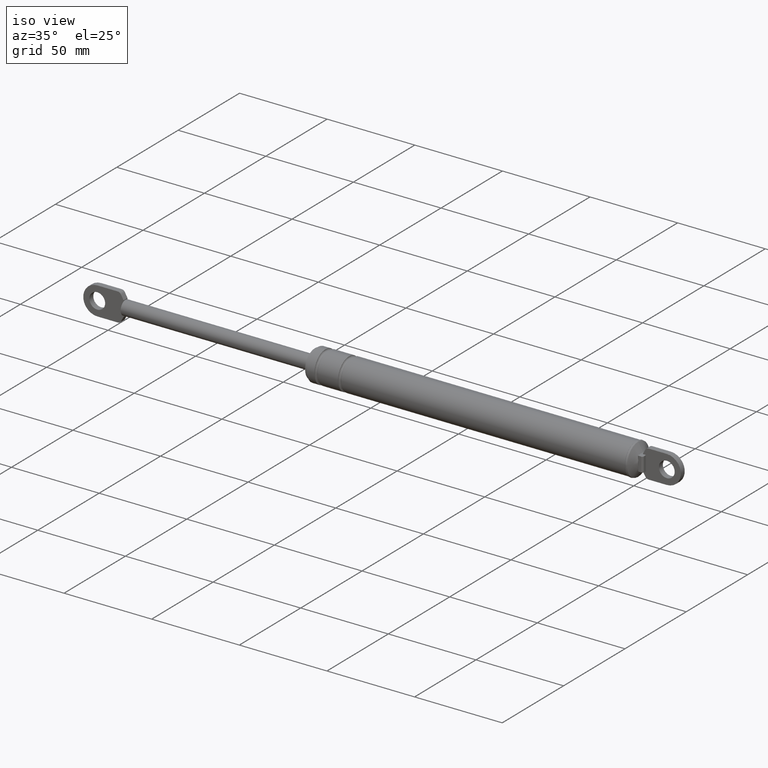
[diagram: clean part render]
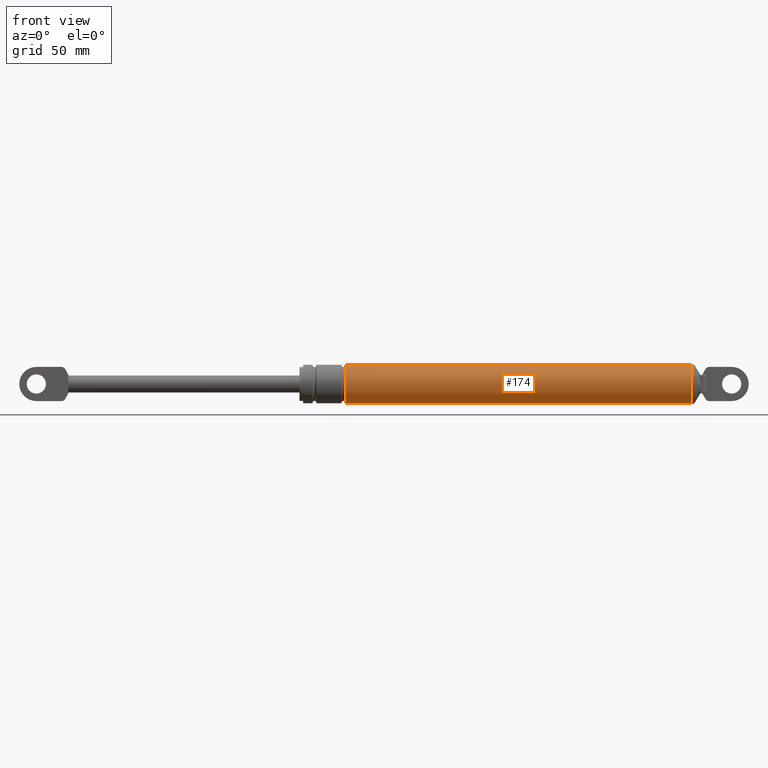
[diagram: tour spotlight — one face highlighted and labeled with its STEP entity id]
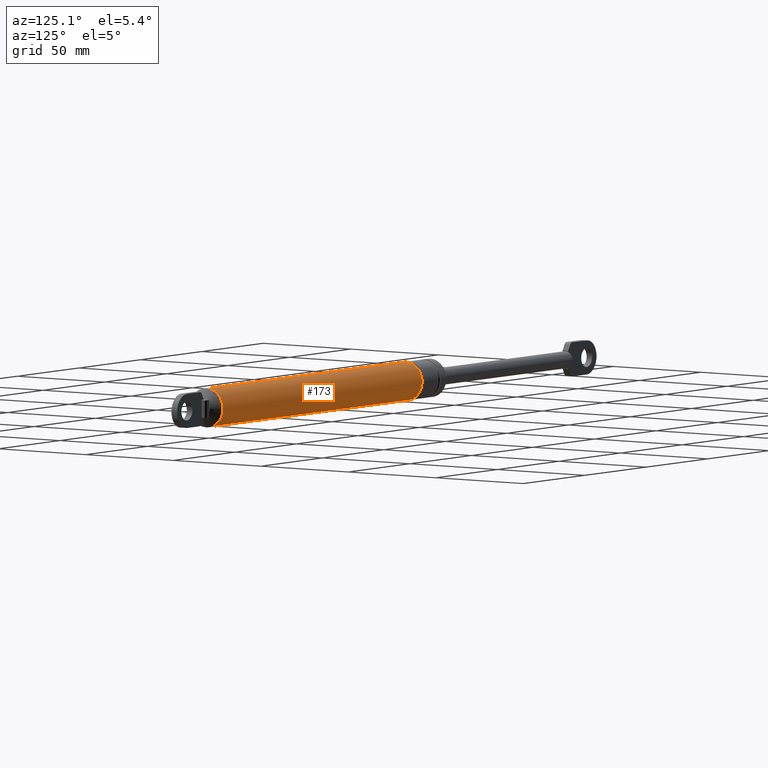
[diagram: tour spotlight — one face highlighted and labeled with its STEP entity id]
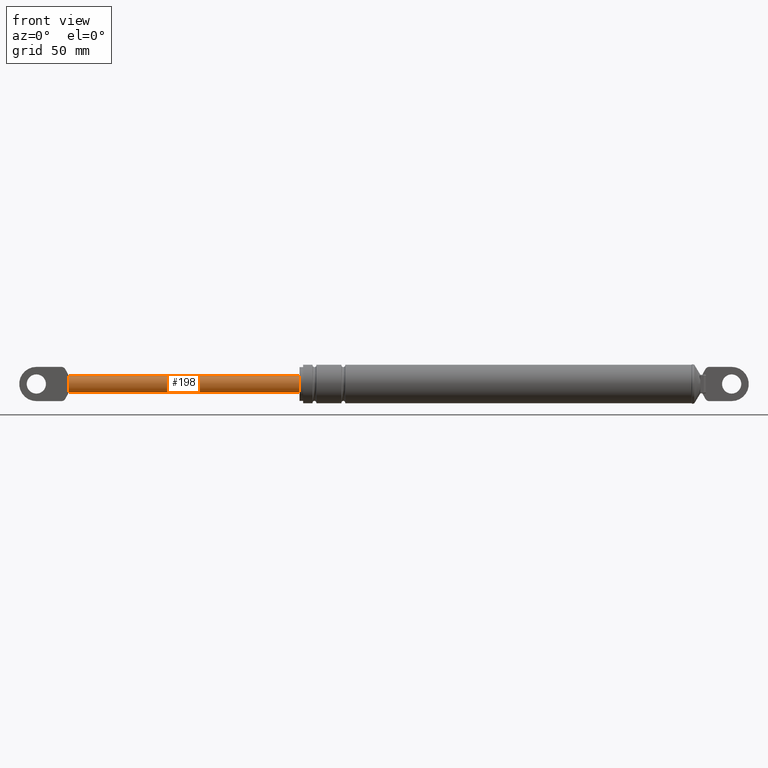
[diagram: tour spotlight — one face highlighted and labeled with its STEP entity id]
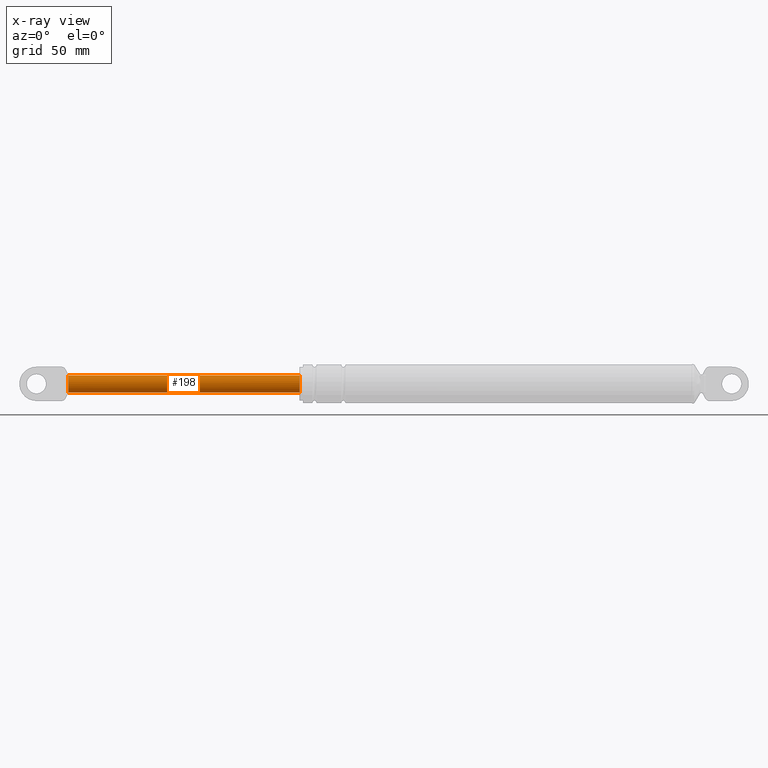
[diagram: x-ray of the same camera — body ghosted, this tour face saturated]
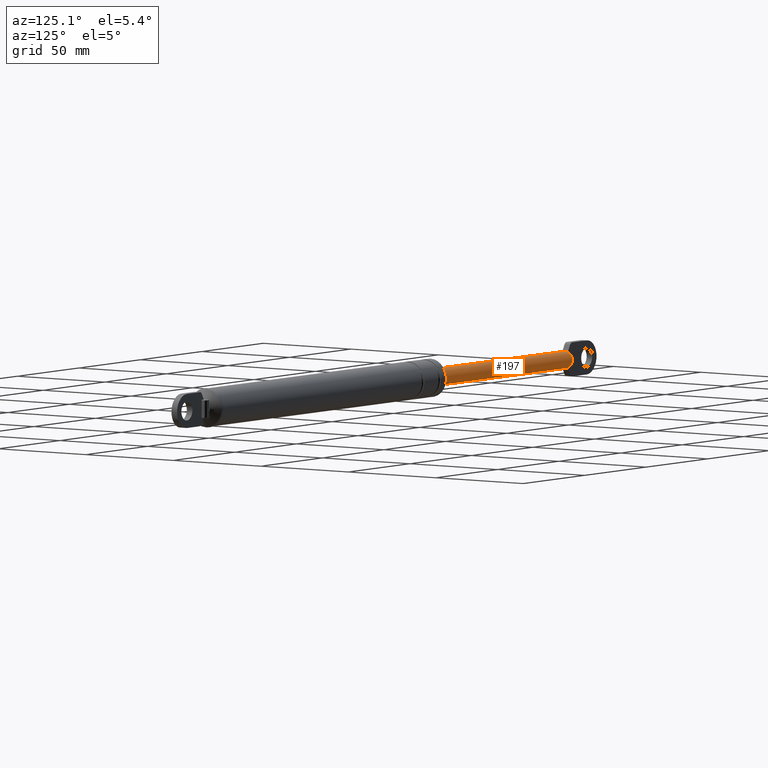
[diagram: tour spotlight — one face highlighted and labeled with its STEP entity id]
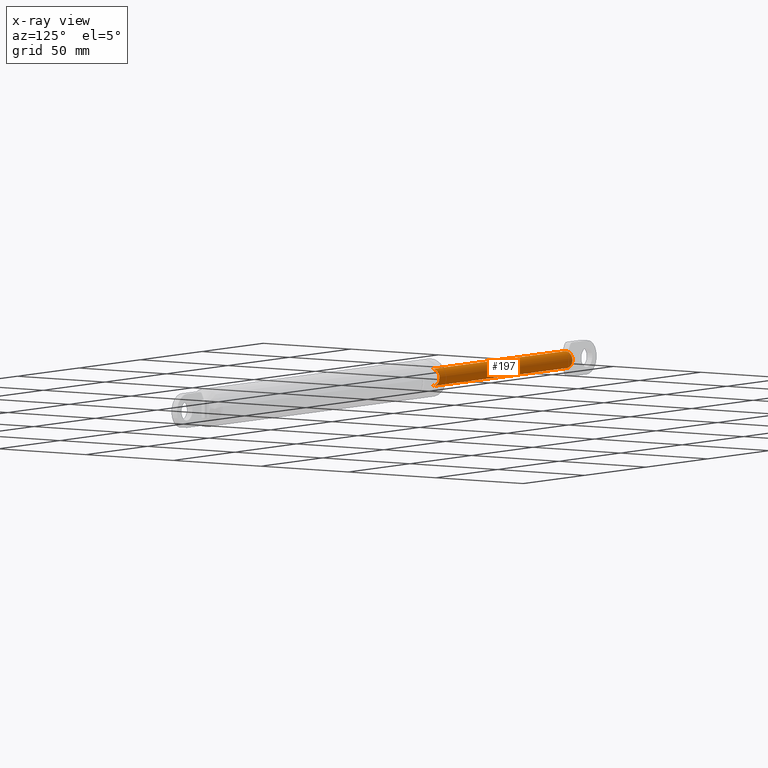
[diagram: x-ray of the same camera — body ghosted, this tour face saturated]
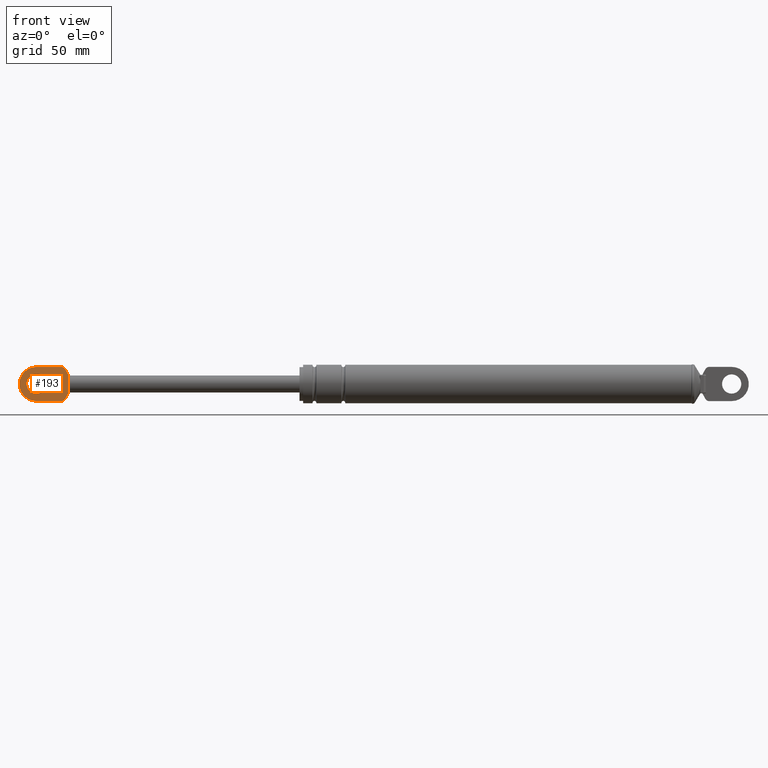
[diagram: tour spotlight — one face highlighted and labeled with its STEP entity id]
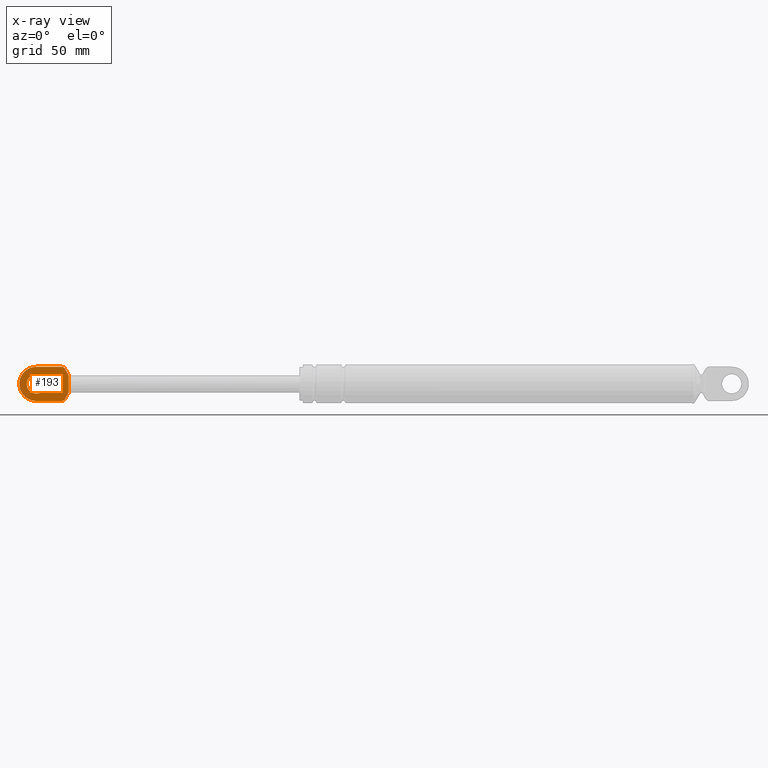
[diagram: x-ray of the same camera — body ghosted, this tour face saturated]
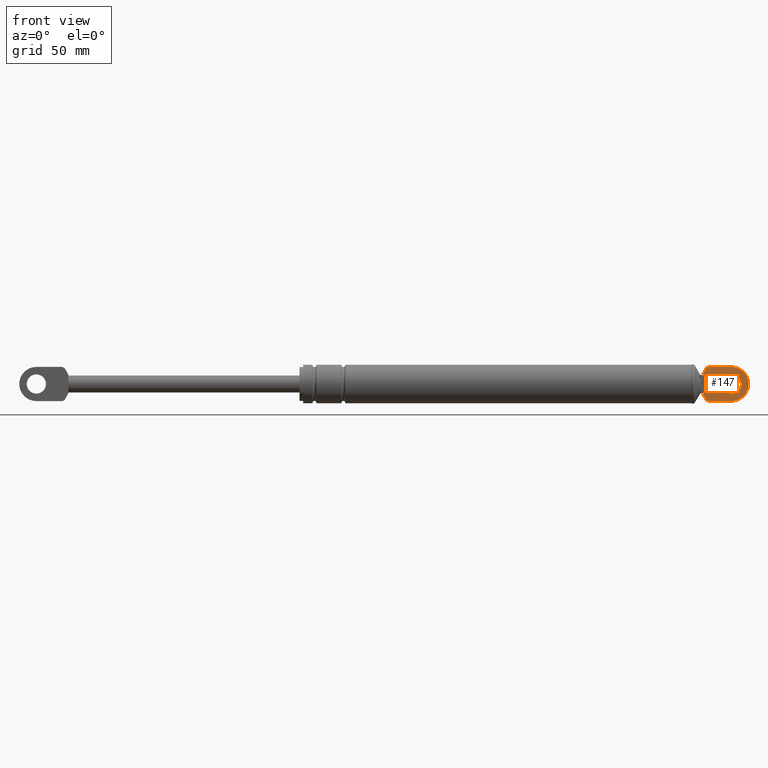
[diagram: tour spotlight — one face highlighted and labeled with its STEP entity id]
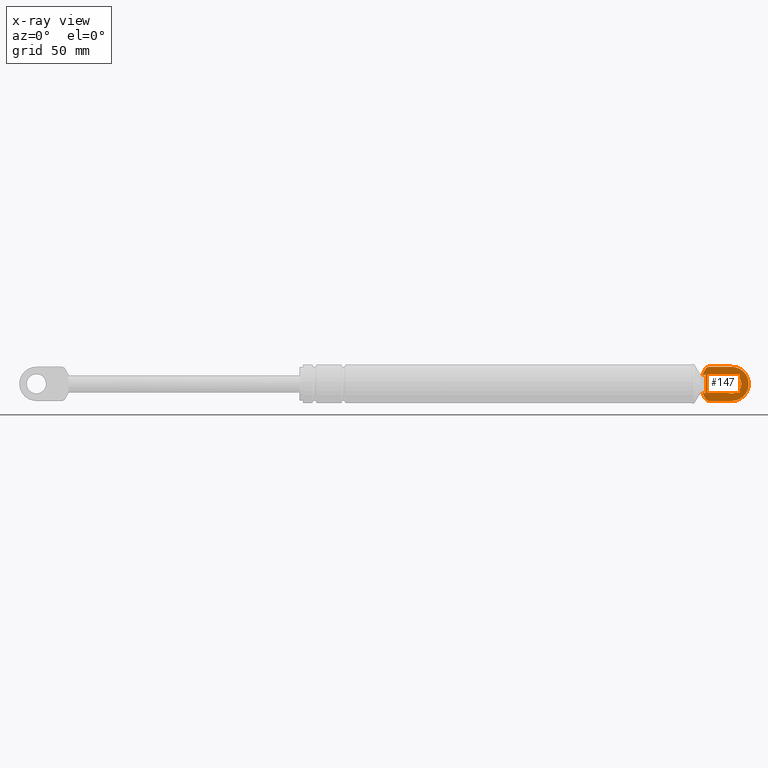
[diagram: x-ray of the same camera — body ghosted, this tour face saturated]
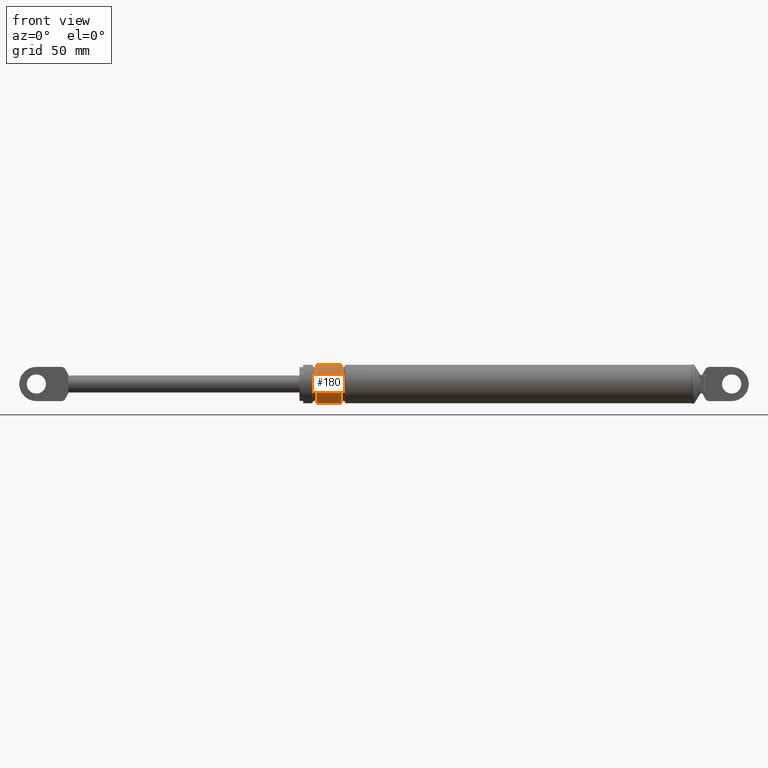
[diagram: tour spotlight — one face highlighted and labeled with its STEP entity id]
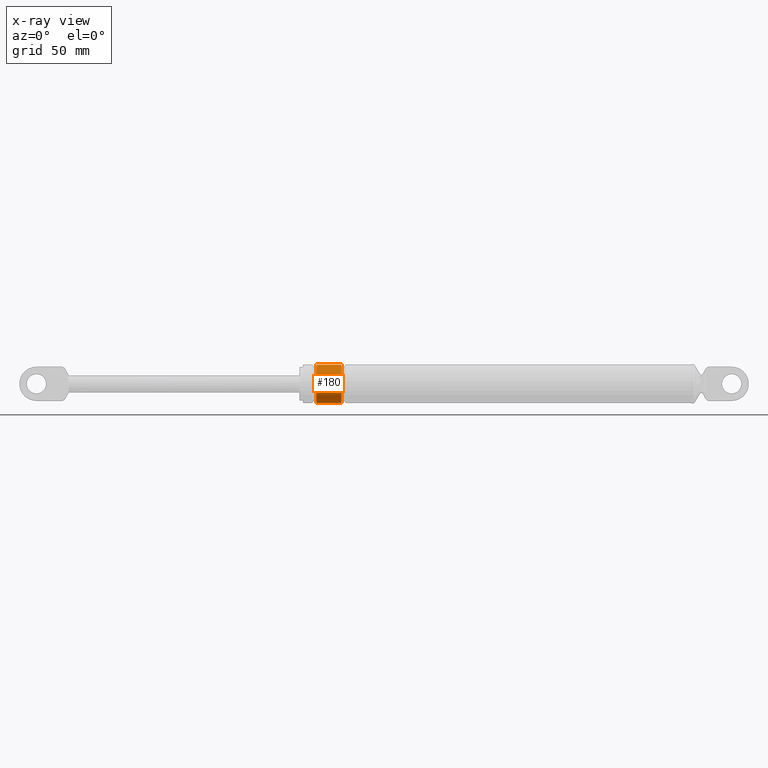
[diagram: x-ray of the same camera — body ghosted, this tour face saturated]
A machine part: a face-by-face anatomy tour. The part has 89 B-rep faces; the first image is the clean iso view, then the 7 largest visible faces are spotlighted one at a time (largest first), each with its STEP entity span.

Face 1 — front view, entity #174. In plain terms, the highlighted cylindrical surface (edge-blend (fillet) strip) has radius 9 mm, axis along (1, 0, 0).
Definition (entity closure, byte-faithful):
#174=ADVANCED_FACE('',(#829),#828,.T.);
#828=CYLINDRICAL_SURFACE('',#1714,9.00000000000E+000);
#829=FACE_OUTER_BOUND('',#1715,.T.);
#1711=CARTESIAN_POINT('',(0.00000000000E+000,0.00000000000E+000,2.08837423287E+002));
#1712=DIRECTION('',(1.00000000000E+000,-0.00000000000E+000,-0.00000000000E+000));
#1713=DIRECTION('',(-0.00000000000E+000,-0.00000000000E+000,-1.00000000000E+000));
#1714=AXIS2_PLACEMENT_3D('',#1711,#1712,#1713);
#1715=EDGE_LOOP('',(#2176,#2177,#2178,#2179));
#2176=ORIENTED_EDGE('',*,*,#2379,.F.);
#2177=ORIENTED_EDGE('',*,*,#2457,.T.);
#2178=ORIENTED_EDGE('',*,*,#2459,.T.);
#2179=ORIENTED_EDGE('',*,*,#2458,.F.);
#2379=EDGE_CURVE('',#3049,#3048,#3056,.T.);
#2457=EDGE_CURVE('',#3049,#3553,#3560,.T.);
#2458=EDGE_CURVE('',#3048,#3552,#3566,.T.);
#2459=EDGE_CURVE('',#3553,#3552,#3572,.T.);
#3048=VERTEX_POINT('',#4297);
#3049=VERTEX_POINT('',#4298);
#3056=CIRCLE('',#4306,9.00000000000E+000);
#3552=VERTEX_POINT('',#4640);
#3553=VERTEX_POINT('',#4641);
#3560=(BOUNDED_CURVE() B_SPLINE_CURVE(1,(#4646,#4647),.UNSPECIFIED.,.F.,.F.) B_SPLINE_CURVE_WITH_KNOTS((2,2),(5.49903767182E-002,9.45009623294E-001),.UNSPECIFIED.) CURVE() GEOMETRIC_REPRESENTATION_ITEM() RATIONAL_B_SPLINE_CURVE((1.00000000000E+000,1.00000000000E+000)) REPRESENTATION_ITEM('') );
#3566=(BOUNDED_CURVE() B_SPLINE_CURVE(1,(#4648,#4649),.UNSPECIFIED.,.F.,.F.) B_SPLINE_CURVE_WITH_KNOTS((2,2),(5.49903766841E-002,9.45009623316E-001),.UNSPECIFIED.) CURVE() GEOMETRIC_REPRESENTATION_ITEM() RATIONAL_B_SPLINE_CURVE((7.50000000000E-001,7.50000000000E-001)) REPRESENTATION_ITEM('') );
#3572=CIRCLE('',#4653,9.00000000000E+000);
#4297=CARTESIAN_POINT('',(1.89413493134E+002,0.00000000000E+000,2.17837423287E+002));
#4298=CARTESIAN_POINT('',(1.89413493134E+002,5.92118946467E-016,1.99837423287E+002));
#4303=CARTESIAN_POINT('',(1.89413493134E+002,0.00000000000E+000,2.08837423287E+002));
#4304=DIRECTION('',(-1.00000000000E+000,0.00000000000E+000,0.00000000000E+000));
#4305=DIRECTION('',(0.00000000000E+000,-1.22460635382E-016,1.00000000000E+000));
#4306=AXIS2_PLACEMENT_3D('',#4303,#4304,#4305);
#4640=CARTESIAN_POINT('',(3.51263493134E+002,0.00000000000E+000,2.17837423287E+002));
#4641=CARTESIAN_POINT('',(3.51263493134E+002,8.88178419700E-016,1.99837423287E+002));
#4646=CARTESIAN_POINT('',(1.89413493140E+002,0.00000000000E+000,1.99837423287E+002));
#4647=CARTESIAN_POINT('',(3.51263493130E+002,0.00000000000E+000,1.99837423287E+002));
#4648=CARTESIAN_POINT('',(1.89413493134E+002,-2.96059473233E-016,2.17837423287E+002));
#4649=CARTESIAN_POINT('',(3.51263493134E+002,-2.96059473233E-016,2.17837423287E+002));
#4650=CARTESIAN_POINT('',(3.51263493134E+002,0.00000000000E+000,2.08837423287E+002));
#4651=DIRECTION('',(-1.00000000000E+000,0.00000000000E+000,0.00000000000E+000));
#4652=DIRECTION('',(0.00000000000E+000,-1.22460635382E-016,1.00000000000E+000));
#4653=AXIS2_PLACEMENT_3D('',#4650,#4651,#4652);

Face 2 — auxiliary view, entity #173. In plain terms, the highlighted cylindrical surface (edge-blend (fillet) strip) has radius 9 mm, axis along (1, 0, 0).
Definition (entity closure, byte-faithful):
#173=ADVANCED_FACE('',(#819),#818,.T.);
#818=CYLINDRICAL_SURFACE('',#1709,9.00000000000E+000);
#819=FACE_OUTER_BOUND('',#1710,.T.);
#1706=CARTESIAN_POINT('',(0.00000000000E+000,0.00000000000E+000,2.08837423287E+002));
#1707=DIRECTION('',(1.00000000000E+000,-0.00000000000E+000,-0.00000000000E+000));
#1708=DIRECTION('',(-0.00000000000E+000,-0.00000000000E+000,-1.00000000000E+000));
#1709=AXIS2_PLACEMENT_3D('',#1706,#1707,#1708);
#1710=EDGE_LOOP('',(#2172,#2173,#2174,#2175));
#2172=ORIENTED_EDGE('',*,*,#2456,.T.);
#2173=ORIENTED_EDGE('',*,*,#2457,.F.);
#2174=ORIENTED_EDGE('',*,*,#2378,.F.);
#2175=ORIENTED_EDGE('',*,*,#2458,.T.);
#2378=EDGE_CURVE('',#3048,#3049,#3050,.T.);
#2456=EDGE_CURVE('',#3552,#3553,#3554,.T.);
#2457=EDGE_CURVE('',#3049,#3553,#3560,.T.);
#2458=EDGE_CURVE('',#3048,#3552,#3566,.T.);
#3048=VERTEX_POINT('',#4297);
#3049=VERTEX_POINT('',#4298);
#3050=CIRCLE('',#4302,9.00000000000E+000);
#3552=VERTEX_POINT('',#4640);
#3553=VERTEX_POINT('',#4641);
#3554=CIRCLE('',#4645,9.00000000000E+000);
#3560=(BOUNDED_CURVE() B_SPLINE_CURVE(1,(#4646,#4647),.UNSPECIFIED.,.F.,.F.) B_SPLINE_CURVE_WITH_KNOTS((2,2),(5.49903767182E-002,9.45009623294E-001),.UNSPECIFIED.) CURVE() GEOMETRIC_REPRESENTATION_ITEM() RATIONAL_B_SPLINE_CURVE((1.00000000000E+000,1.00000000000E+000)) REPRESENTATION_ITEM('') );
#3566=(BOUNDED_CURVE() B_SPLINE_CURVE(1,(#4648,#4649),.UNSPECIFIED.,.F.,.F.) B_SPLINE_CURVE_WITH_KNOTS((2,2),(5.49903766841E-002,9.45009623316E-001),.UNSPECIFIED.) CURVE() GEOMETRIC_REPRESENTATION_ITEM() RATIONAL_B_SPLINE_CURVE((7.50000000000E-001,7.50000000000E-001)) REPRESENTATION_ITEM('') );
#4297=CARTESIAN_POINT('',(1.89413493134E+002,0.00000000000E+000,2.17837423287E+002));
#4298=CARTESIAN_POINT('',(1.89413493134E+002,5.92118946467E-016,1.99837423287E+002));
#4299=CARTESIAN_POINT('',(1.89413493134E+002,0.00000000000E+000,2.08837423287E+002));
#4300=DIRECTION('',(-1.00000000000E+000,0.00000000000E+000,0.00000000000E+000));
#4301=DIRECTION('',(0.00000000000E+000,-1.22460635382E-016,1.00000000000E+000));
#4302=AXIS2_PLACEMENT_3D('',#4299,#4300,#4301);
#4640=CARTESIAN_POINT('',(3.51263493134E+002,0.00000000000E+000,2.17837423287E+002));
#4641=CARTESIAN_POINT('',(3.51263493134E+002,8.88178419700E-016,1.99837423287E+002));
#4642=CARTESIAN_POINT('',(3.51263493134E+002,0.00000000000E+000,2.08837423287E+002));
#4643=DIRECTION('',(-1.00000000000E+000,0.00000000000E+000,0.00000000000E+000));
#4644=DIRECTION('',(0.00000000000E+000,-1.22460635382E-016,1.00000000000E+000));
#4645=AXIS2_PLACEMENT_3D('',#4642,#4643,#4644);
#4646=CARTESIAN_POINT('',(1.89413493140E+002,0.00000000000E+000,1.99837423287E+002));
#4647=CARTESIAN_POINT('',(3.51263493130E+002,0.00000000000E+000,1.99837423287E+002));
#4648=CARTESIAN_POINT('',(1.89413493134E+002,-2.96059473233E-016,2.17837423287E+002));
#4649=CARTESIAN_POINT('',(3.51263493134E+002,-2.96059473233E-016,2.17837423287E+002));

Face 3 — front view, entity #198. An x-ray twin of the same camera follows (body ghosted, this face saturated) — the face is partly hidden behind the body. In plain terms, the highlighted cylindrical surface (edge-blend (fillet) strip) has radius 4 mm, axis along (1, 0, 0).
Definition (entity closure, byte-faithful):
#198=ADVANCED_FACE('',(#1071),#1070,.T.);
#1070=CYLINDRICAL_SURFACE('',#1860,4.00000000000E+000);
#1071=FACE_OUTER_BOUND('',#1861,.T.);
#1857=CARTESIAN_POINT('',(0.00000000000E+000,0.00000000000E+000,2.08837423287E+002));
#1858=DIRECTION('',(1.00000000000E+000,-0.00000000000E+000,-0.00000000000E+000));
#1859=DIRECTION('',(-0.00000000000E+000,-0.00000000000E+000,-1.00000000000E+000));
#1860=AXIS2_PLACEMENT_3D('',#1857,#1858,#1859);
#1861=EDGE_LOOP('',(#2286,#2287,#2288,#2289,#2290,#2291));
#2286=ORIENTED_EDGE('',*,*,#2490,.F.);
#2287=ORIENTED_EDGE('',*,*,#2482,.F.);
#2288=ORIENTED_EDGE('',*,*,#2486,.F.);
#2289=ORIENTED_EDGE('',*,*,#2510,.T.);
#2290=ORIENTED_EDGE('',*,*,#2499,.T.);
#2291=ORIENTED_EDGE('',*,*,#2511,.F.);
#2482=EDGE_CURVE('',#3722,#3723,#3724,.T.);
#2486=EDGE_CURVE('',#3743,#3722,#3750,.T.);
#2490=EDGE_CURVE('',#3723,#3775,#3776,.T.);
#2499=EDGE_CURVE('',#3834,#3835,#3836,.T.);
#2510=EDGE_CURVE('',#3743,#3834,#3908,.T.);
#2511=EDGE_CURVE('',#3775,#3835,#3914,.T.);
#3722=VERTEX_POINT('',#4729);
#3723=VERTEX_POINT('',#4730);
#3724=CIRCLE('',#4734,4.00000000000E+000);
#3743=VERTEX_POINT('',#4742);
#3750=CIRCLE('',#4750,4.00000000000E+000);
#3775=VERTEX_POINT('',#4761);
#3776=CIRCLE('',#4765,4.00000000000E+000);
#3834=VERTEX_POINT('',#4797);
#3835=VERTEX_POINT('',#4798);
#3836=CIRCLE('',#4802,4.00000000000E+000);
#3908=(BOUNDED_CURVE() B_SPLINE_CURVE(1,(#4846,#4847),.UNSPECIFIED.,.F.,.F.) B_SPLINE_CURVE_WITH_KNOTS((2,2),(7.81250003720E-002,9.21874999887E-001),.UNSPECIFIED.) CURVE() GEOMETRIC_REPRESENTATION_ITEM() RATIONAL_B_SPLINE_CURVE((1.00000000000E+000,1.00000000000E+000)) REPRESENTATION_ITEM('') );
#3914=(BOUNDED_CURVE() B_SPLINE_CURVE(1,(#4848,#4849),.UNSPECIFIED.,.F.,.F.) B_SPLINE_CURVE_WITH_KNOTS((2,2),(7.81250000000E-002,9.21875000000E-001),.UNSPECIFIED.) CURVE() GEOMETRIC_REPRESENTATION_ITEM() RATIONAL_B_SPLINE_CURVE((7.50000000000E-001,7.50000000000E-001)) REPRESENTATION_ITEM('') );
#4729=CARTESIAN_POINT('',(6.00134931336E+001,-1.60000000000E+000,2.05171362731E+002));
#4730=CARTESIAN_POINT('',(6.00134931336E+001,-1.60000000000E+000,2.12503483843E+002));
#4731=CARTESIAN_POINT('',(6.00134931336E+001,0.00000000000E+000,2.08837423287E+002));
#4732=DIRECTION('',(-1.00000000000E+000,0.00000000000E+000,0.00000000000E+000));
#4733=DIRECTION('',(-0.00000000000E+000,-0.00000000000E+000,-1.00000000000E+000));
#4734=AXIS2_PLACEMENT_3D('',#4731,#4732,#4733);
#4742=CARTESIAN_POINT('',(6.00134931336E+001,1.56409000143E-015,2.04837423287E+002));
#4747=CARTESIAN_POINT('',(6.00134931336E+001,0.00000000000E+000,2.08837423287E+002));
#4748=DIRECTION('',(-1.00000000000E+000,0.00000000000E+000,0.00000000000E+000));
#4749=DIRECTION('',(-0.00000000000E+000,4.00000000000E-001,-9.16515138991E-001));
#4750=AXIS2_PLACEMENT_3D('',#4747,#4748,#4749);
#4761=CARTESIAN_POINT('',(6.00134931336E+001,5.49543669652E-007,2.12837423287E+002));
#4762=CARTESIAN_POINT('',(6.00134931336E+001,0.00000000000E+000,2.08837423287E+002));
#4763=DIRECTION('',(-1.00000000000E+000,0.00000000000E+000,0.00000000000E+000));
#4764=DIRECTION('',(-0.00000000000E+000,-0.00000000000E+000,-1.00000000000E+000));
#4765=AXIS2_PLACEMENT_3D('',#4762,#4763,#4764);
#4797=CARTESIAN_POINT('',(1.68013493134E+002,4.44089209850E-016,2.04837423287E+002));
#4798=CARTESIAN_POINT('',(1.68013493134E+002,0.00000000000E+000,2.12837423287E+002));
#4799=CARTESIAN_POINT('',(1.68013493134E+002,0.00000000000E+000,2.08837423287E+002));
#4800=DIRECTION('',(-1.00000000000E+000,0.00000000000E+000,0.00000000000E+000));
#4801=DIRECTION('',(0.00000000000E+000,-1.22460635382E-016,1.00000000000E+000));
#4802=AXIS2_PLACEMENT_3D('',#4799,#4800,#4801);
#4846=CARTESIAN_POINT('',(6.00134931812E+001,0.00000000000E+000,2.04837423287E+002));
#4847=CARTESIAN_POINT('',(1.68013493119E+002,0.00000000000E+000,2.04837423287E+002));
#4848=CARTESIAN_POINT('',(6.00134931336E+001,-1.48029736617E-016,2.12837423287E+002));
#4849=CARTESIAN_POINT('',(1.68013493134E+002,-1.48029736617E-016,2.12837423287E+002));

Face 4 — auxiliary view, entity #197. An x-ray twin of the same camera follows (body ghosted, this face saturated) — the face is partly hidden behind the body. In plain terms, the highlighted cylindrical surface (edge-blend (fillet) strip) has radius 4 mm, axis along (1, 0, 0).
Definition (entity closure, byte-faithful):
#197=ADVANCED_FACE('',(#1061),#1060,.T.);
#1060=CYLINDRICAL_SURFACE('',#1855,4.00000000000E+000);
#1061=FACE_OUTER_BOUND('',#1856,.T.);
#1852=CARTESIAN_POINT('',(0.00000000000E+000,0.00000000000E+000,2.08837423287E+002));
#1853=DIRECTION('',(1.00000000000E+000,-0.00000000000E+000,-0.00000000000E+000));
#1854=DIRECTION('',(-0.00000000000E+000,-0.00000000000E+000,-1.00000000000E+000));
#1855=AXIS2_PLACEMENT_3D('',#1852,#1853,#1854);
#1856=EDGE_LOOP('',(#2280,#2281,#2282,#2283,#2284,#2285));
#2280=ORIENTED_EDGE('',*,*,#2500,.T.);
#2281=ORIENTED_EDGE('',*,*,#2510,.F.);
#2282=ORIENTED_EDGE('',*,*,#2485,.F.);
#2283=ORIENTED_EDGE('',*,*,#2481,.F.);
#2284=ORIENTED_EDGE('',*,*,#2491,.F.);
#2285=ORIENTED_EDGE('',*,*,#2511,.T.);
#2481=EDGE_CURVE('',#3708,#3709,#3716,.T.);
#2485=EDGE_CURVE('',#3709,#3743,#3744,.T.);
#2491=EDGE_CURVE('',#3775,#3708,#3782,.T.);
#2500=EDGE_CURVE('',#3835,#3834,#3842,.T.);
#2510=EDGE_CURVE('',#3743,#3834,#3908,.T.);
#2511=EDGE_CURVE('',#3775,#3835,#3914,.T.);
#3708=VERTEX_POINT('',#4720);
#3709=VERTEX_POINT('',#4721);
#3716=CIRCLE('',#4728,4.00000000000E+000);
#3743=VERTEX_POINT('',#4742);
#3744=CIRCLE('',#4746,4.00000000000E+000);
#3775=VERTEX_POINT('',#4761);
#3782=CIRCLE('',#4769,4.00000000000E+000);
#3834=VERTEX_POINT('',#4797);
#3835=VERTEX_POINT('',#4798);
#3842=CIRCLE('',#4806,4.00000000000E+000);
#3908=(BOUNDED_CURVE() B_SPLINE_CURVE(1,(#4846,#4847),.UNSPECIFIED.,.F.,.F.) B_SPLINE_CURVE_WITH_KNOTS((2,2),(7.81250003720E-002,9.21874999887E-001),.UNSPECIFIED.) CURVE() GEOMETRIC_REPRESENTATION_ITEM() RATIONAL_B_SPLINE_CURVE((1.00000000000E+000,1.00000000000E+000)) REPRESENTATION_ITEM('') );
#3914=(BOUNDED_CURVE() B_SPLINE_CURVE(1,(#4848,#4849),.UNSPECIFIED.,.F.,.F.) B_SPLINE_CURVE_WITH_KNOTS((2,2),(7.81250000000E-002,9.21875000000E-001),.UNSPECIFIED.) CURVE() GEOMETRIC_REPRESENTATION_ITEM() RATIONAL_B_SPLINE_CURVE((7.50000000000E-001,7.50000000000E-001)) REPRESENTATION_ITEM('') );
#4720=CARTESIAN_POINT('',(6.00134931336E+001,1.60000000000E+000,2.12503483843E+002));
#4721=CARTESIAN_POINT('',(6.00134931336E+001,1.60000000000E+000,2.05171362731E+002));
#4725=CARTESIAN_POINT('',(6.00134931336E+001,0.00000000000E+000,2.08837423287E+002));
#4726=DIRECTION('',(-1.00000000000E+000,0.00000000000E+000,0.00000000000E+000));
#4727=DIRECTION('',(-0.00000000000E+000,-0.00000000000E+000,-1.00000000000E+000));
#4728=AXIS2_PLACEMENT_3D('',#4725,#4726,#4727);
#4742=CARTESIAN_POINT('',(6.00134931336E+001,1.56409000143E-015,2.04837423287E+002));
#4743=CARTESIAN_POINT('',(6.00134931336E+001,0.00000000000E+000,2.08837423287E+002));
#4744=DIRECTION('',(-1.00000000000E+000,0.00000000000E+000,0.00000000000E+000));
#4745=DIRECTION('',(-0.00000000000E+000,4.00000000000E-001,-9.16515138991E-001));
#4746=AXIS2_PLACEMENT_3D('',#4743,#4744,#4745);
#4761=CARTESIAN_POINT('',(6.00134931336E+001,5.49543669652E-007,2.12837423287E+002));
#4766=CARTESIAN_POINT('',(6.00134931336E+001,0.00000000000E+000,2.08837423287E+002));
#4767=DIRECTION('',(-1.00000000000E+000,0.00000000000E+000,0.00000000000E+000));
#4768=DIRECTION('',(-0.00000000000E+000,-0.00000000000E+000,-1.00000000000E+000));
#4769=AXIS2_PLACEMENT_3D('',#4766,#4767,#4768);
#4797=CARTESIAN_POINT('',(1.68013493134E+002,4.44089209850E-016,2.04837423287E+002));
#4798=CARTESIAN_POINT('',(1.68013493134E+002,0.00000000000E+000,2.12837423287E+002));
#4803=CARTESIAN_POINT('',(1.68013493134E+002,0.00000000000E+000,2.08837423287E+002));
#4804=DIRECTION('',(-1.00000000000E+000,0.00000000000E+000,0.00000000000E+000));
#4805=DIRECTION('',(0.00000000000E+000,-1.22460635382E-016,1.00000000000E+000));
#4806=AXIS2_PLACEMENT_3D('',#4803,#4804,#4805);
#4846=CARTESIAN_POINT('',(6.00134931812E+001,0.00000000000E+000,2.04837423287E+002));
#4847=CARTESIAN_POINT('',(1.68013493119E+002,0.00000000000E+000,2.04837423287E+002));
#4848=CARTESIAN_POINT('',(6.00134931336E+001,-1.48029736617E-016,2.12837423287E+002));
#4849=CARTESIAN_POINT('',(1.68013493134E+002,-1.48029736617E-016,2.12837423287E+002));

Face 5 — front view, entity #193. An x-ray twin of the same camera follows (body ghosted, this face saturated) — the face is partly hidden behind the body. In plain terms, the highlighted planar face has unit normal (0, -1, 0).
Definition (entity closure, byte-faithful):
#193=ADVANCED_FACE('',(#1019,#1020),#1018,.T.);
#1018=PLANE('',#1833);
#1019=FACE_OUTER_BOUND('',#1834,.T.);
#1020=FACE_BOUND('',#1835,.T.);
#1830=CARTESIAN_POINT('',(3.47134931336E+001,-1.60000000000E+000,2.18437423287E+002));
#1831=DIRECTION('',(0.00000000000E+000,-1.00000000000E+000,0.00000000000E+000));
#1832=DIRECTION('',(0.00000000000E+000,0.00000000000E+000,-1.00000000000E+000));
#1833=AXIS2_PLACEMENT_3D('',#1830,#1831,#1832);
#1834=EDGE_LOOP('',(#2248,#2249,#2250,#2251,#2252,#2253,#2254,#2255,#2256,#2257));
#1835=EDGE_LOOP('',(#2258,#2259));
#2248=ORIENTED_EDGE('',*,*,#2501,.F.);
#2249=ORIENTED_EDGE('',*,*,#2496,.T.);
#2250=ORIENTED_EDGE('',*,*,#2493,.F.);
#2251=ORIENTED_EDGE('',*,*,#2487,.F.);
#2252=ORIENTED_EDGE('',*,*,#2483,.F.);
#2253=ORIENTED_EDGE('',*,*,#2489,.F.);
#2254=ORIENTED_EDGE('',*,*,#2474,.F.);
#2255=ORIENTED_EDGE('',*,*,#2470,.T.);
#2256=ORIENTED_EDGE('',*,*,#2477,.F.);
#2257=ORIENTED_EDGE('',*,*,#2502,.T.);
#2258=ORIENTED_EDGE('',*,*,#2503,.F.);
#2259=ORIENTED_EDGE('',*,*,#2504,.F.);
#2470=EDGE_CURVE('',#3640,#3641,#3642,.T.);
#2474=EDGE_CURVE('',#3640,#3668,#3669,.T.);
#2477=EDGE_CURVE('',#3688,#3641,#3689,.T.);
#2483=EDGE_CURVE('',#3723,#3722,#3730,.T.);
#2487=EDGE_CURVE('',#3722,#3756,#3757,.T.);
#2489=EDGE_CURVE('',#3668,#3723,#3769,.T.);
#2493=EDGE_CURVE('',#3756,#3794,#3795,.T.);
#2496=EDGE_CURVE('',#3814,#3794,#3815,.T.);
#2501=EDGE_CURVE('',#3814,#3848,#3849,.T.);
#2502=EDGE_CURVE('',#3688,#3848,#3855,.T.);
#2503=EDGE_CURVE('',#3861,#3862,#3863,.T.);
#2504=EDGE_CURVE('',#3862,#3861,#3869,.T.);
#3640=VERTEX_POINT('',#4680);
#3641=VERTEX_POINT('',#4681);
#3642=CIRCLE('',#4685,2.00000000000E+000);
#3668=VERTEX_POINT('',#4698);
#3669=LINE('',#4699,#4700);
#3688=VERTEX_POINT('',#4709);
#3689=LINE('',#4710,#4711);
#3722=VERTEX_POINT('',#4729);
#3723=VERTEX_POINT('',#4730);
#3730=LINE('',#4735,#4736);
#3756=VERTEX_POINT('',#4751);
#3757=LINE('',#4752,#4753);
#3769=LINE('',#4758,#4759);
#3794=VERTEX_POINT('',#4773);
#3795=LINE('',#4774,#4775);
#3814=VERTEX_POINT('',#4784);
#3815=CIRCLE('',#4788,2.00000000000E+000);
#3848=VERTEX_POINT('',#4807);
#3849=LINE('',#4808,#4809);
#3855=CIRCLE('',#4814,8.00000000000E+000);
#3861=VERTEX_POINT('',#4815);
#3862=VERTEX_POINT('',#4816);
#3863=CIRCLE('',#4820,4.50000000000E+000);
#3869=CIRCLE('',#4824,4.50000000000E+000);
#4680=CARTESIAN_POINT('',(5.85662795381E+001,-1.60000000000E+000,2.15731850478E+002));
#4681=CARTESIAN_POINT('',(5.67774251561E+001,-1.60000000000E+000,2.16837423287E+002));
#4682=CARTESIAN_POINT('',(5.67774251561E+001,-1.60000000000E+000,2.14837423287E+002));
#4683=DIRECTION('',(0.00000000000E+000,-1.00000000000E+000,0.00000000000E+000));
#4684=DIRECTION('',(-0.00000000000E+000,-0.00000000000E+000,1.00000000000E+000));
#4685=AXIS2_PLACEMENT_3D('',#4682,#4683,#4684);
#4698=CARTESIAN_POINT('',(6.00134931336E+001,-1.60000000000E+000,2.13137423287E+002));
#4699=CARTESIAN_POINT('',(5.85662795381E+001,-1.60000000000E+000,2.15731850478E+002));
#4700=VECTOR('',#4701,2.97077088319E+000);
#4701=DIRECTION('',(4.87150861647E-001,0.00000000000E+000,-8.73317833321E-001));
#4709=CARTESIAN_POINT('',(4.50134931336E+001,-1.60000000000E+000,2.16837423287E+002));
#4710=CARTESIAN_POINT('',(4.50134931336E+001,-1.60000000000E+000,2.16837423287E+002));
#4711=VECTOR('',#4712,1.17639320225E+001);
#4712=DIRECTION('',(1.00000000000E+000,0.00000000000E+000,0.00000000000E+000));
#4729=CARTESIAN_POINT('',(6.00134931336E+001,-1.60000000000E+000,2.05171362731E+002));
#4730=CARTESIAN_POINT('',(6.00134931336E+001,-1.60000000000E+000,2.12503483843E+002));
#4735=CARTESIAN_POINT('',(6.00134931336E+001,-1.60000000000E+000,2.12503483843E+002));
#4736=VECTOR('',#4737,7.33212111193E+000);
#4737=DIRECTION('',(0.00000000000E+000,0.00000000000E+000,-1.00000000000E+000));
#4751=CARTESIAN_POINT('',(6.00134931336E+001,-1.60000000000E+000,2.04537423287E+002));
#4752=CARTESIAN_POINT('',(6.00134931336E+001,-1.60000000000E+000,2.05171362731E+002));
#4753=VECTOR('',#4754,6.33939444035E-001);
#4754=DIRECTION('',(0.00000000000E+000,0.00000000000E+000,-1.00000000000E+000));
#4758=CARTESIAN_POINT('',(6.00134931336E+001,-1.60000000000E+000,2.13137423287E+002));
#4759=VECTOR('',#4760,6.33939444035E-001);
#4760=DIRECTION('',(0.00000000000E+000,0.00000000000E+000,-1.00000000000E+000));
#4773=CARTESIAN_POINT('',(5.85662795381E+001,-1.60000000000E+000,2.01942996096E+002));
#4774=CARTESIAN_POINT('',(6.00134931336E+001,-1.60000000000E+000,2.04537423287E+002));
#4775=VECTOR('',#4776,2.97077088319E+000);
#4776=DIRECTION('',(-4.87150861647E-001,0.00000000000E+000,-8.73317833321E-001));
#4784=CARTESIAN_POINT('',(5.67774251561E+001,-1.60000000000E+000,2.00837423287E+002));
#4785=CARTESIAN_POINT('',(5.67774251561E+001,-1.60000000000E+000,2.02837423287E+002));
#4786=DIRECTION('',(0.00000000000E+000,-1.00000000000E+000,0.00000000000E+000));
#4787=DIRECTION('',(-0.00000000000E+000,-0.00000000000E+000,1.00000000000E+000));
#4788=AXIS2_PLACEMENT_3D('',#4785,#4786,#4787);
#4807=CARTESIAN_POINT('',(4.50134931336E+001,-1.60000000000E+000,2.00837423287E+002));
#4808=CARTESIAN_POINT('',(5.67774251561E+001,-1.60000000000E+000,2.00837423287E+002));
#4809=VECTOR('',#4810,1.17639320225E+001);
#4810=DIRECTION('',(-1.00000000000E+000,0.00000000000E+000,0.00000000000E+000));
#4811=CARTESIAN_POINT('',(4.50134931336E+001,-1.60000000000E+000,2.08837423287E+002));
#4812=DIRECTION('',(0.00000000000E+000,-1.00000000000E+000,0.00000000000E+000));
#4813=DIRECTION('',(-0.00000000000E+000,-0.00000000000E+000,1.00000000000E+000));
#4814=AXIS2_PLACEMENT_3D('',#4811,#4812,#4813);
#4815=CARTESIAN_POINT('',(4.50134931336E+001,-1.60000000000E+000,2.13337423287E+002));
#4816=CARTESIAN_POINT('',(4.50134931336E+001,-1.60000000000E+000,2.04337423287E+002));
#4817=CARTESIAN_POINT('',(4.50134931336E+001,-1.60000000000E+000,2.08837423287E+002));
#4818=DIRECTION('',(0.00000000000E+000,-1.00000000000E+000,-0.00000000000E+000));
#4819=DIRECTION('',(-1.22460635382E-016,0.00000000000E+000,-1.00000000000E+000));
#4820=AXIS2_PLACEMENT_3D('',#4817,#4818,#4819);
#4821=CARTESIAN_POINT('',(4.50134931336E+001,-1.60000000000E+000,2.08837423287E+002));
#4822=DIRECTION('',(0.00000000000E+000,-1.00000000000E+000,-0.00000000000E+000));
#4823=DIRECTION('',(-1.22460635382E-016,0.00000000000E+000,-1.00000000000E+000));
#4824=AXIS2_PLACEMENT_3D('',#4821,#4822,#4823);

Face 6 — front view, entity #147. An x-ray twin of the same camera follows (body ghosted, this face saturated) — the face is partly hidden behind the body. In plain terms, the highlighted planar face has unit normal (0, -1, 0).
Definition (entity closure, byte-faithful):
#147=ADVANCED_FACE('',(#558,#559),#557,.T.);
#557=PLANE('',#1430);
#558=FACE_OUTER_BOUND('',#1431,.T.);
#559=FACE_BOUND('',#1432,.T.);
#1427=CARTESIAN_POINT('',(3.54088493134E+002,-1.60000000000E+000,2.18437423287E+002));
#1428=DIRECTION('',(0.00000000000E+000,-1.00000000000E+000,0.00000000000E+000));
#1429=DIRECTION('',(0.00000000000E+000,0.00000000000E+000,-1.00000000000E+000));
#1430=AXIS2_PLACEMENT_3D('',#1427,#1428,#1429);
#1431=EDGE_LOOP('',(#2044,#2045,#2046,#2047,#2048,#2049,#2050,#2051,#2052,#2053,#2054,#2055));
#1432=EDGE_LOOP('',(#2056,#2057));
#2044=ORIENTED_EDGE('',*,*,#2349,.F.);
#2045=ORIENTED_EDGE('',*,*,#2423,.T.);
#2046=ORIENTED_EDGE('',*,*,#2408,.T.);
#2047=ORIENTED_EDGE('',*,*,#2324,.T.);
#2048=ORIENTED_EDGE('',*,*,#2354,.T.);
#2049=ORIENTED_EDGE('',*,*,#2424,.T.);
#2050=ORIENTED_EDGE('',*,*,#2425,.T.);
#2051=ORIENTED_EDGE('',*,*,#2426,.T.);
#2052=ORIENTED_EDGE('',*,*,#2427,.T.);
#2053=ORIENTED_EDGE('',*,*,#2428,.T.);
#2054=ORIENTED_EDGE('',*,*,#2429,.T.);
#2055=ORIENTED_EDGE('',*,*,#2430,.T.);
#2056=ORIENTED_EDGE('',*,*,#2431,.F.);
#2057=ORIENTED_EDGE('',*,*,#2432,.F.);
#2324=EDGE_CURVE('',#2678,#2679,#2680,.T.);
#2349=EDGE_CURVE('',#2841,#2848,#2849,.T.);
#2354=EDGE_CURVE('',#2679,#2875,#2882,.T.);
#2408=EDGE_CURVE('',#3245,#2678,#3246,.T.);
#2423=EDGE_CURVE('',#2841,#3245,#3344,.T.);
#2424=EDGE_CURVE('',#2875,#3350,#3351,.T.);
#2425=EDGE_CURVE('',#3350,#3357,#3358,.T.);
#2426=EDGE_CURVE('',#3357,#3364,#3365,.T.);
#2427=EDGE_CURVE('',#3364,#3371,#3372,.T.);
#2428=EDGE_CURVE('',#3371,#3378,#3379,.T.);
#2429=EDGE_CURVE('',#3378,#3385,#3386,.T.);
#2430=EDGE_CURVE('',#3385,#2848,#3392,.T.);
#2431=EDGE_CURVE('',#3398,#3399,#3400,.T.);
#2432=EDGE_CURVE('',#3399,#3398,#3406,.T.);
#2678=VERTEX_POINT('',#4048);
#2679=VERTEX_POINT('',#4049);
#2680=CIRCLE('',#4053,3.00000000000E-001);
#2841=VERTEX_POINT('',#4159);
#2848=VERTEX_POINT('',#4163);
#2849=LINE('',#4164,#4165);
#2875=VERTEX_POINT('',#4178);
#2882=LINE('',#4182,#4183);
#3245=VERTEX_POINT('',#4443);
#3246=LINE('',#4444,#4445);
#3344=CIRCLE('',#4507,3.00000000000E-001);
#3350=VERTEX_POINT('',#4508);
#3351=LINE('',#4509,#4510);
#3357=VERTEX_POINT('',#4512);
#3358=CIRCLE('',#4516,2.00000000000E+000);
#3364=VERTEX_POINT('',#4517);
#3365=LINE('',#4518,#4519);
#3371=VERTEX_POINT('',#4521);
#3372=CIRCLE('',#4525,8.00000000000E+000);
#3378=VERTEX_POINT('',#4526);
#3379=LINE('',#4527,#4528);
#3385=VERTEX_POINT('',#4530);
#3386=CIRCLE('',#4534,2.00000000000E+000);
#3392=LINE('',#4535,#4536);
#3398=VERTEX_POINT('',#4538);
#3399=VERTEX_POINT('',#4539);
#3400=CIRCLE('',#4543,4.50000000000E+000);
#3406=CIRCLE('',#4547,4.50000000000E+000);
#4048=CARTESIAN_POINT('',(3.58013493134E+002,-1.60000000000E+000,2.04837423287E+002));
#4049=CARTESIAN_POINT('',(3.57713493134E+002,-1.60000000000E+000,2.04537423287E+002));
#4050=CARTESIAN_POINT('',(3.57713493134E+002,-1.60000000000E+000,2.04837423287E+002));
#4051=DIRECTION('',(-0.00000000000E+000,1.00000000000E+000,0.00000000000E+000));
#4052=DIRECTION('',(-0.00000000000E+000,-0.00000000000E+000,1.00000000000E+000));
#4053=AXIS2_PLACEMENT_3D('',#4050,#4051,#4052);
#4159=CARTESIAN_POINT('',(3.57713493134E+002,-1.60000000000E+000,2.13137423287E+002));
#4163=CARTESIAN_POINT('',(3.56263493134E+002,-1.60000000000E+000,2.13137423287E+002));
#4164=CARTESIAN_POINT('',(3.57713493134E+002,-1.60000000000E+000,2.13137423287E+002));
#4165=VECTOR('',#4166,1.45000000000E+000);
#4166=DIRECTION('',(-1.00000000000E+000,0.00000000000E+000,0.00000000000E+000));
#4178=CARTESIAN_POINT('',(3.56263493134E+002,-1.60000000000E+000,2.04537423287E+002));
#4182=CARTESIAN_POINT('',(3.57713493134E+002,-1.60000000000E+000,2.04537423287E+002));
#4183=VECTOR('',#4184,1.45000000000E+000);
#4184=DIRECTION('',(-1.00000000000E+000,0.00000000000E+000,0.00000000000E+000));
#4443=CARTESIAN_POINT('',(3.58013493134E+002,-1.60000000000E+000,2.12837423287E+002));
#4444=CARTESIAN_POINT('',(3.58013493134E+002,-1.60000000000E+000,2.12837423287E+002));
#4445=VECTOR('',#4446,8.00000000000E+000);
#4446=DIRECTION('',(0.00000000000E+000,0.00000000000E+000,-1.00000000000E+000));
#4504=CARTESIAN_POINT('',(3.57713493134E+002,-1.60000000000E+000,2.12837423287E+002));
#4505=DIRECTION('',(-0.00000000000E+000,1.00000000000E+000,0.00000000000E+000));
#4506=DIRECTION('',(-0.00000000000E+000,-0.00000000000E+000,1.00000000000E+000));
#4507=AXIS2_PLACEMENT_3D('',#4504,#4505,#4506);
#4508=CARTESIAN_POINT('',(3.57710706729E+002,-1.60000000000E+000,2.01942996096E+002));
#4509=CARTESIAN_POINT('',(3.56263493134E+002,-1.60000000000E+000,2.04537423287E+002));
#4510=VECTOR('',#4511,2.97077088319E+000);
#4511=DIRECTION('',(4.87150861647E-001,0.00000000000E+000,-8.73317833321E-001));
#4512=CARTESIAN_POINT('',(3.59499561111E+002,-1.60000000000E+000,2.00837423287E+002));
#4513=CARTESIAN_POINT('',(3.59499561111E+002,-1.60000000000E+000,2.02837423287E+002));
#4514=DIRECTION('',(0.00000000000E+000,-1.00000000000E+000,0.00000000000E+000));
#4515=DIRECTION('',(-0.00000000000E+000,-0.00000000000E+000,1.00000000000E+000));
#4516=AXIS2_PLACEMENT_3D('',#4513,#4514,#4515);
#4517=CARTESIAN_POINT('',(3.70013493134E+002,-1.60000000000E+000,2.00837423287E+002));
#4518=CARTESIAN_POINT('',(3.59499561111E+002,-1.60000000000E+000,2.00837423287E+002));
#4519=VECTOR('',#4520,1.05139320225E+001);
#4520=DIRECTION('',(1.00000000000E+000,0.00000000000E+000,0.00000000000E+000));
#4521=CARTESIAN_POINT('',(3.70013493134E+002,-1.60000000000E+000,2.16837423287E+002));
#4522=CARTESIAN_POINT('',(3.70013493134E+002,-1.60000000000E+000,2.08837423287E+002));
#4523=DIRECTION('',(0.00000000000E+000,-1.00000000000E+000,0.00000000000E+000));
#4524=DIRECTION('',(-0.00000000000E+000,-0.00000000000E+000,1.00000000000E+000));
#4525=AXIS2_PLACEMENT_3D('',#4522,#4523,#4524);
#4526=CARTESIAN_POINT('',(3.59499561111E+002,-1.60000000000E+000,2.16837423287E+002));
#4527=CARTESIAN_POINT('',(3.70013493134E+002,-1.60000000000E+000,2.16837423287E+002));
#4528=VECTOR('',#4529,1.05139320225E+001);
#4529=DIRECTION('',(-1.00000000000E+000,0.00000000000E+000,0.00000000000E+000));
#4530=CARTESIAN_POINT('',(3.57710706729E+002,-1.60000000000E+000,2.15731850478E+002));
#4531=CARTESIAN_POINT('',(3.59499561111E+002,-1.60000000000E+000,2.14837423287E+002));
#4532=DIRECTION('',(0.00000000000E+000,-1.00000000000E+000,0.00000000000E+000));
#4533=DIRECTION('',(-0.00000000000E+000,-0.00000000000E+000,1.00000000000E+000));
#4534=AXIS2_PLACEMENT_3D('',#4531,#4532,#4533);
#4535=CARTESIAN_POINT('',(3.57710706729E+002,-1.60000000000E+000,2.15731850478E+002));
#4536=VECTOR('',#4537,2.97077088319E+000);
#4537=DIRECTION('',(-4.87150861647E-001,0.00000000000E+000,-8.73317833321E-001));
#4538=CARTESIAN_POINT('',(3.70013493134E+002,-1.60000000000E+000,2.13337423287E+002));
#4539=CARTESIAN_POINT('',(3.70013493134E+002,-1.60000000000E+000,2.04337423287E+002));
#4540=CARTESIAN_POINT('',(3.70013493134E+002,-1.60000000000E+000,2.08837423287E+002));
#4541=DIRECTION('',(0.00000000000E+000,-1.00000000000E+000,-0.00000000000E+000));
#4542=DIRECTION('',(-1.22460635382E-016,0.00000000000E+000,-1.00000000000E+000));
#4543=AXIS2_PLACEMENT_3D('',#4540,#4541,#4542);
#4544=CARTESIAN_POINT('',(3.70013493134E+002,-1.60000000000E+000,2.08837423287E+002));
#4545=DIRECTION('',(0.00000000000E+000,-1.00000000000E+000,-0.00000000000E+000));
#4546=DIRECTION('',(-1.22460635382E-016,0.00000000000E+000,-1.00000000000E+000));
#4547=AXIS2_PLACEMENT_3D('',#4544,#4545,#4546);

Face 7 — front view, entity #180. An x-ray twin of the same camera follows (body ghosted, this face saturated) — the face is partly hidden behind the body. In plain terms, the highlighted cylindrical surface (edge-blend (fillet) strip) has radius 9 mm, axis along (1, 0, 0).
Definition (entity closure, byte-faithful):
#180=ADVANCED_FACE('',(#889),#888,.T.);
#888=CYLINDRICAL_SURFACE('',#1768,9.00000000000E+000);
#889=FACE_OUTER_BOUND('',#1769,.T.);
#1765=CARTESIAN_POINT('',(0.00000000000E+000,0.00000000000E+000,2.08837423287E+002));
#1766=DIRECTION('',(1.00000000000E+000,-0.00000000000E+000,-0.00000000000E+000));
#1767=DIRECTION('',(-0.00000000000E+000,-0.00000000000E+000,-1.00000000000E+000));
#1768=AXIS2_PLACEMENT_3D('',#1765,#1766,#1767);
#1769=EDGE_LOOP('',(#2200,#2201,#2202,#2203));
#2200=ORIENTED_EDGE('',*,*,#2371,.F.);
#2201=ORIENTED_EDGE('',*,*,#2466,.T.);
#2202=ORIENTED_EDGE('',*,*,#2374,.T.);
#2203=ORIENTED_EDGE('',*,*,#2467,.F.);
#2371=EDGE_CURVE('',#2993,#2992,#3000,.T.);
#2374=EDGE_CURVE('',#3020,#3021,#3022,.T.);
#2466=EDGE_CURVE('',#2993,#3020,#3616,.T.);
#2467=EDGE_CURVE('',#2992,#3021,#3622,.T.);
#2992=VERTEX_POINT('',#4257);
#2993=VERTEX_POINT('',#4258);
#3000=CIRCLE('',#4266,9.00000000000E+000);
#3020=VERTEX_POINT('',#4277);
#3021=VERTEX_POINT('',#4278);
#3022=CIRCLE('',#4282,9.00000000000E+000);
#3616=(BOUNDED_CURVE() B_SPLINE_CURVE(1,(#4672,#4673),.UNSPECIFIED.,.F.,.F.) B_SPLINE_CURVE_WITH_KNOTS((2,2),(8.33333343261E-002,9.16666667006E-001),.UNSPECIFIED.) CURVE() GEOMETRIC_REPRESENTATION_ITEM() RATIONAL_B_SPLINE_CURVE((1.00000000000E+000,1.00000000000E+000)) REPRESENTATION_ITEM('') );
#3622=(BOUNDED_CURVE() B_SPLINE_CURVE(1,(#4674,#4675),.UNSPECIFIED.,.F.,.F.) B_SPLINE_CURVE_WITH_KNOTS((2,2),(8.33333333333E-002,9.16666666667E-001),.UNSPECIFIED.) CURVE() GEOMETRIC_REPRESENTATION_ITEM() RATIONAL_B_SPLINE_CURVE((7.50000000000E-001,7.50000000000E-001)) REPRESENTATION_ITEM('') );
#4257=CARTESIAN_POINT('',(1.75913493134E+002,0.00000000000E+000,2.17837423287E+002));
#4258=CARTESIAN_POINT('',(1.75913493134E+002,5.92118946467E-016,1.99837423287E+002));
#4263=CARTESIAN_POINT('',(1.75913493134E+002,0.00000000000E+000,2.08837423287E+002));
#4264=DIRECTION('',(-1.00000000000E+000,0.00000000000E+000,0.00000000000E+000));
#4265=DIRECTION('',(0.00000000000E+000,-1.22460635382E-016,1.00000000000E+000));
#4266=AXIS2_PLACEMENT_3D('',#4263,#4264,#4265);
#4277=CARTESIAN_POINT('',(1.87613493134E+002,5.92118946467E-016,1.99837423287E+002));
#4278=CARTESIAN_POINT('',(1.87613493134E+002,0.00000000000E+000,2.17837423287E+002));
#4279=CARTESIAN_POINT('',(1.87613493134E+002,0.00000000000E+000,2.08837423287E+002));
#4280=DIRECTION('',(-1.00000000000E+000,0.00000000000E+000,0.00000000000E+000));
#4281=DIRECTION('',(0.00000000000E+000,-1.22460635382E-016,1.00000000000E+000));
#4282=AXIS2_PLACEMENT_3D('',#4279,#4280,#4281);
#4672=CARTESIAN_POINT('',(1.75913493148E+002,0.00000000000E+000,1.99837423287E+002));
#4673=CARTESIAN_POINT('',(1.87613493138E+002,0.00000000000E+000,1.99837423287E+002));
#4674=CARTESIAN_POINT('',(1.75913493134E+002,-5.92118946467E-016,2.17837423287E+002));
#4675=CARTESIAN_POINT('',(1.87613493134E+002,-5.92118946467E-016,2.17837423287E+002));